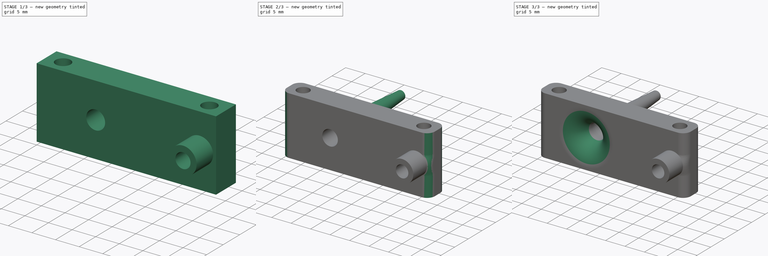
[diagram: build sequence overview — one tinted view per stage of 3, left to right]
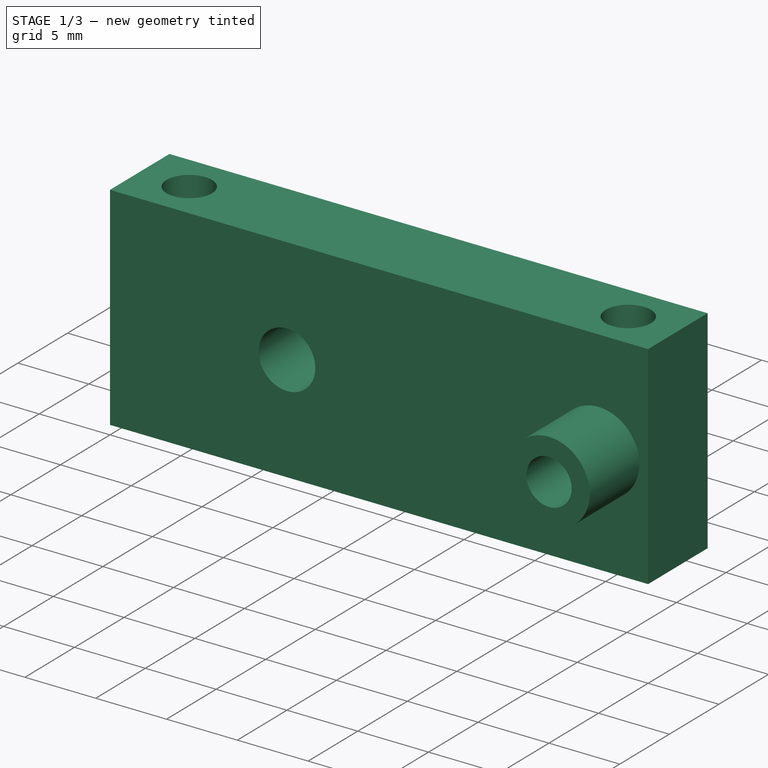
[diagram: stage 1 of 3 — iso view after this stage's code; geometry added in this stage tinted green]
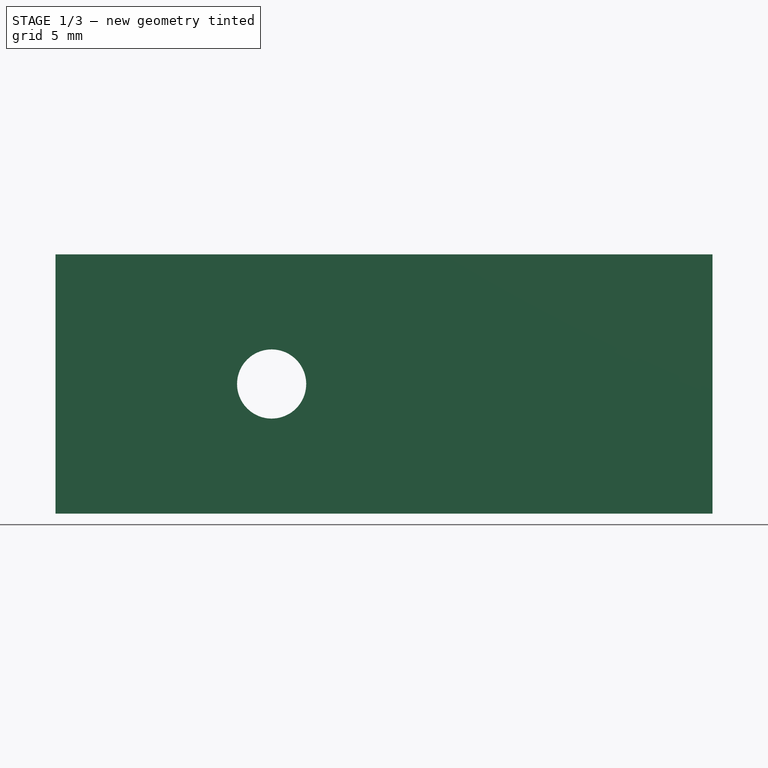
[diagram: stage 1 of 3 — front view after this stage's code; geometry added in this stage tinted green]
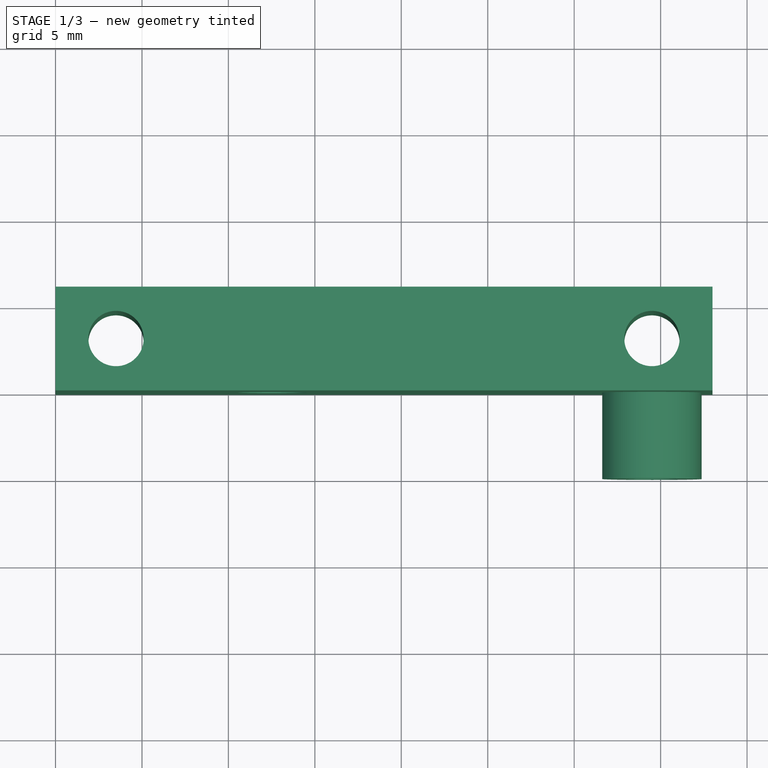
[diagram: stage 1 of 3 — top view after this stage's code; geometry added in this stage tinted green]
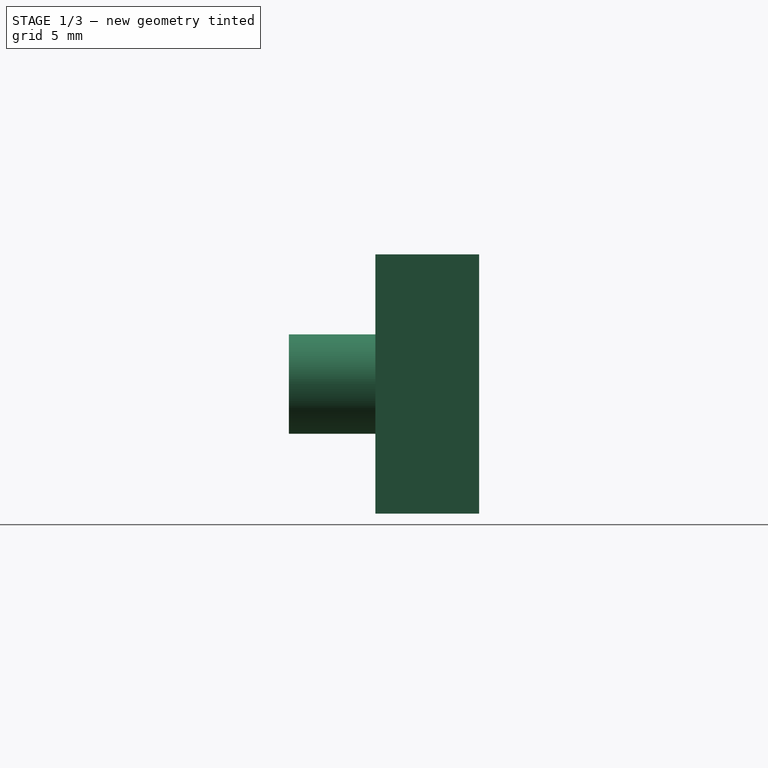
[diagram: stage 1 of 3 — right view after this stage's code; geometry added in this stage tinted green]
FCSTD DOCUMENT  (FreeCAD 1.0R39109 (Git))
Label: funnel
License: All rights reserved
LicenseURL: https://en.wikipedia.org/wiki/All_rights_reserved
objects: Sketcher::SketchObject×8, PartDesign::Fillet×4, PartDesign::Pad×2, PartDesign::Plane×2, PartDesign::Pocket×1, PartDesign::AdditiveLoft×1, PartDesign::Body×1
note: 43 computed .brp shape members not serialized (recipe doc carries the construction recipe); baked Part::Feature solids carry a one-line shape summary decoded from their .brp

FEATURE [Sketcher::SketchObject] Sketch
  ArcFitTolerance = 1e-06
  AttachmentSupport = -> [XY_Plane]
  FullyConstrained = true
  MakeInternals = false
  MapMode = 5
  sketch-geometry (14):
    g0: LineSegment StartX=0 StartY=0 StartZ=0 EndX=38 EndY=0 EndZ=0
    g1: LineSegment StartX=38 StartY=0 StartZ=0 EndX=38 EndY=6 EndZ=0
    g2: LineSegment StartX=38 StartY=6 StartZ=0 EndX=0 EndY=6 EndZ=0
    g3: LineSegment StartX=0 StartY=6 StartZ=0 EndX=0 EndY=0 EndZ=0
    g4: LineSegment [constr] StartX=0 StartY=6 StartZ=0 EndX=0 EndY=3 EndZ=0
    g5: LineSegment [constr] StartX=0 StartY=3 StartZ=0 EndX=3.5 EndY=3 EndZ=0
    g6: LineSegment [constr] StartX=3.5 StartY=3 StartZ=0 EndX=3.5 EndY=6 EndZ=0
    g7: LineSegment [constr] StartX=3.5 StartY=6 StartZ=0 EndX=0 EndY=6 EndZ=0
    g8: LineSegment [constr] StartX=38 StartY=6 StartZ=0 EndX=34.5 EndY=6 EndZ=0
    g9: LineSegment [constr] StartX=34.5 StartY=6 StartZ=0 EndX=34.5 EndY=3 EndZ=0
    g10: LineSegment [constr] StartX=34.5 StartY=3 StartZ=0 EndX=38 EndY=3 EndZ=0
    g11: LineSegment [constr] StartX=38 StartY=3 StartZ=0 EndX=38 EndY=6 EndZ=0
    g12: Circle CenterX=3.5 CenterY=3 CenterZ=0 NormalX=0 NormalY=0 NormalZ=1 AngleXU=0 Radius=1.6
    g13: Circle CenterX=34.5 CenterY=3 CenterZ=0 NormalX=0 NormalY=0 NormalZ=1 AngleXU=0 Radius=1.6
  constraints (37):
    c: Coincident(g0,g1)
    c: Coincident(g1,g2)
    c: Coincident(g2,g3)
    c: Coincident(g3,g0)
    c: Horizontal(g0)
    c: Horizontal(g2)
    c: Vertical(g1)
    c: Vertical(g3)
    c: Distance(g1,g3) = 38
    c: Distance(g0,g2) = 6
    c: Coincident(g0,g-1)
    c: Coincident(g4,g5)
    c: Coincident(g5,g6)
    c: Coincident(g6,g7)
    c: Coincident(g7,g4)
    c: Vertical(g4)
    c: Vertical(g6)
    c: Horizontal(g5)
    c: Horizontal(g7)
    c: Distance(g4,g6) = 3.5
    c: Distance(g5,g7) = 3
    c: Coincident(g4,g2)
    c: Coincident(g8,g9)
    c: Coincident(g9,g10)
    c: Coincident(g10,g11)
    c: Coincident(g11,g8)
    c: Horizontal(g8)
    c: Horizontal(g10)
    c: Vertical(g9)
    c: Vertical(g11)
    c: Distance(g9,g11) = 3.5
    c: Distance(g8,g10) = 3
    c: Coincident(g8,g1)
    c: Diameter(g12) = 3.2
    c: Coincident(g12,g5)
    c: Diameter(g13) = 3.2
    c: Coincident(g13,g9)
FEATURE [PartDesign::Pad] Pad
  Direction = (0,0,1)
  Length = 15
  Length2 = 10
  Profile = -> Sketch
  ReferenceAxis = -> Sketch [N_Axis]
  Refine = true
  Suppressed = false
  Type = 0
FEATURE [Sketcher::SketchObject] Sketch001
  ArcFitTolerance = 1e-06
  AttachmentSupport = -> [Pad]
  FullyConstrained = true
  MakeInternals = false
  MapMode = 5
  Placement = pos=(0,0,0) rot=(1,0,0;1.5708rad)
  sketch-geometry (9):
    g0: LineSegment [constr] StartX=0 StartY=0 StartZ=0 EndX=38 EndY=0 EndZ=0
    g1: LineSegment [constr] StartX=38 StartY=0 StartZ=0 EndX=38 EndY=15 EndZ=0
    g2: LineSegment [constr] StartX=38 StartY=15 StartZ=0 EndX=0 EndY=15 EndZ=0
    g3: LineSegment [constr] StartX=0 StartY=15 StartZ=0 EndX=0 EndY=0 EndZ=0
    g4: LineSegment [constr] StartX=0 StartY=0 StartZ=0 EndX=12.5 EndY=0 EndZ=0
    g5: LineSegment [constr] StartX=12.5 StartY=0 StartZ=0 EndX=12.5 EndY=7.5 EndZ=0
    g6: LineSegment [constr] StartX=12.5 StartY=7.5 StartZ=0 EndX=0 EndY=7.5 EndZ=0
    g7: LineSegment [constr] StartX=0 StartY=7.5 StartZ=0 EndX=0 EndY=0 EndZ=0
    g8: Circle CenterX=12.5 CenterY=7.5 CenterZ=0 NormalX=0 NormalY=0 NormalZ=1 AngleXU=0 Radius=2
  constraints (24):
    c: Coincident(g0,g1)
    c: Coincident(g1,g2)
    c: Coincident(g2,g3)
    c: Coincident(g3,g0)
    c: Horizontal(g0)
    c: Horizontal(g2)
    c: Vertical(g1)
    c: Vertical(g3)
    c: Distance(g1,g3) = 38
    c: Distance(g0,g2) = 15
    c: Coincident(g0,g-1)
    c: Coincident(g4,g5)
    c: Coincident(g5,g6)
    c: Coincident(g6,g7)
    c: Coincident(g7,g4)
    c: Horizontal(g4)
    c: Horizontal(g6)
    c: Vertical(g5)
    c: Vertical(g7)
    c: Distance(g5,g7) = 12.5
    c: Distance(g4,g6) = 7.5
    c: Coincident(g4,g0)
    c: Diameter(g8) = 4
    c: Coincident(g8,g5)
FEATURE [PartDesign::Pocket] Pocket
  BaseFeature = -> Pad
  Direction = (0,1,-2e-16)
  Length = 7
  Length2 = 5
  Profile = -> Sketch001
  ReferenceAxis = -> Sketch001 [N_Axis]
  Refine = true
  Suppressed = false
  Type = 0
FEATURE [Sketcher::SketchObject] Sketch002
  ArcFitTolerance = 1e-06
  AttachmentSupport = -> [Pocket]
  FullyConstrained = true
  MakeInternals = false
  MapMode = 5
  Placement = pos=(0,0,0) rot=(1,0,0;1.5708rad)
  sketch-geometry (10):
    g0: LineSegment [constr] StartX=0 StartY=0 StartZ=0 EndX=38 EndY=0 EndZ=0
    g1: LineSegment [constr] StartX=38 StartY=0 StartZ=0 EndX=38 EndY=15 EndZ=0
    g2: LineSegment [constr] StartX=38 StartY=15 StartZ=0 EndX=0 EndY=15 EndZ=0
    g3: LineSegment [constr] StartX=0 StartY=15 StartZ=0 EndX=0 EndY=0 EndZ=0
    g4: LineSegment [constr] StartX=0 StartY=0 StartZ=0 EndX=34.5 EndY=0 EndZ=0
    g5: LineSegment [constr] StartX=34.5 StartY=0 StartZ=0 EndX=34.5 EndY=7.5 EndZ=0
    g6: LineSegment [constr] StartX=34.5 StartY=7.5 StartZ=0 EndX=0 EndY=7.5 EndZ=0
    g7: LineSegment [constr] StartX=0 StartY=7.5 StartZ=0 EndX=0 EndY=0 EndZ=0
    g8: Circle CenterX=34.5 CenterY=7.5 CenterZ=0 NormalX=0 NormalY=0 NormalZ=1 AngleXU=0 Radius=2.875
    g9: Circle CenterX=34.5 CenterY=7.5 CenterZ=0 NormalX=0 NormalY=0 NormalZ=1 AngleXU=0 Radius=1.6
  constraints (26):
    c: Coincident(g0,g1)
    c: Coincident(g1,g2)
    c: Coincident(g2,g3)
    c: Coincident(g3,g0)
    c: Horizontal(g0)
    c: Horizontal(g2)
    c: Vertical(g1)
    c: Vertical(g3)
    c: Distance(g1,g3) = 38
    c: Distance(g0,g2) = 15
    c: Coincident(g0,g-1)
    c: Coincident(g4,g5)
    c: Coincident(g5,g6)
    c: Coincident(g6,g7)
    c: Coincident(g7,g4)
    c: Horizontal(g4)
    c: Horizontal(g6)
    c: Vertical(g5)
    c: Vertical(g7)
    c: Distance(g5,g7) = 34.5
    c: Distance(g4,g6) = 7.5
    c: Coincident(g4,g0)
    c: Diameter(g8) = 5.75
    c: Coincident(g8,g5)
    c: Diameter(g9) = 3.2
    c: Coincident(g9,g5)
FEATURE [PartDesign::Pad] Pad001
  BaseFeature = -> Pocket
  Direction = (0,-1,2e-16)
  Length = 5
  Length2 = 10
  Profile = -> Sketch002
  ReferenceAxis = -> Sketch002 [N_Axis]
  Refine = true
  Suppressed = false
  Type = 0
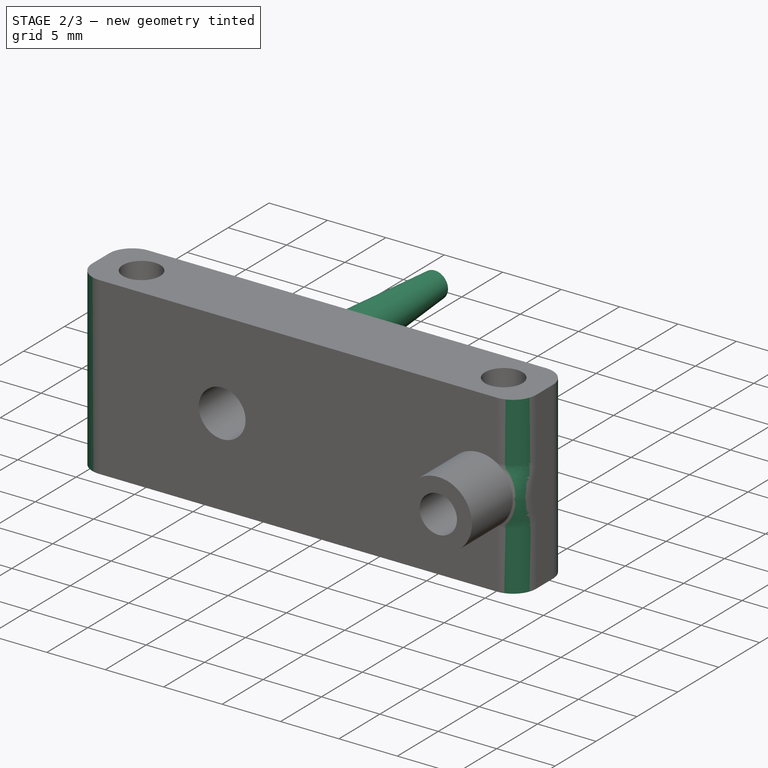
[diagram: stage 2 of 3 — iso view after this stage's code; geometry added in this stage tinted green]
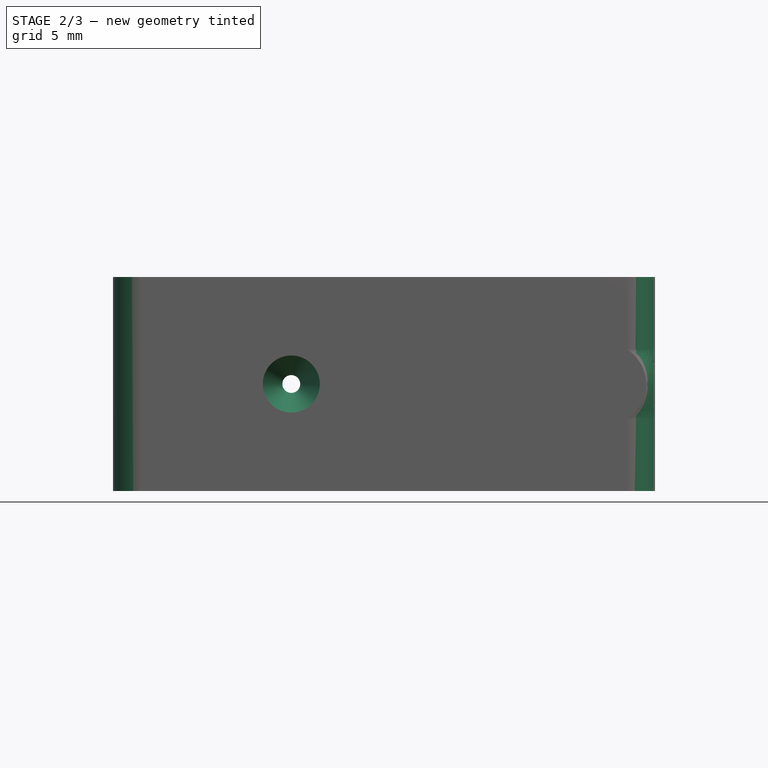
[diagram: stage 2 of 3 — front view after this stage's code; geometry added in this stage tinted green]
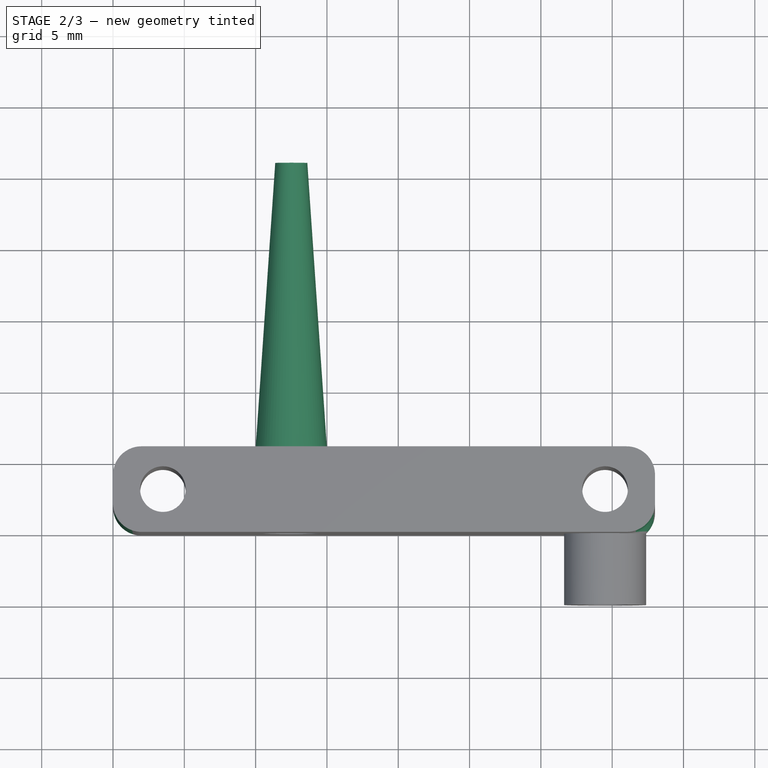
[diagram: stage 2 of 3 — top view after this stage's code; geometry added in this stage tinted green]
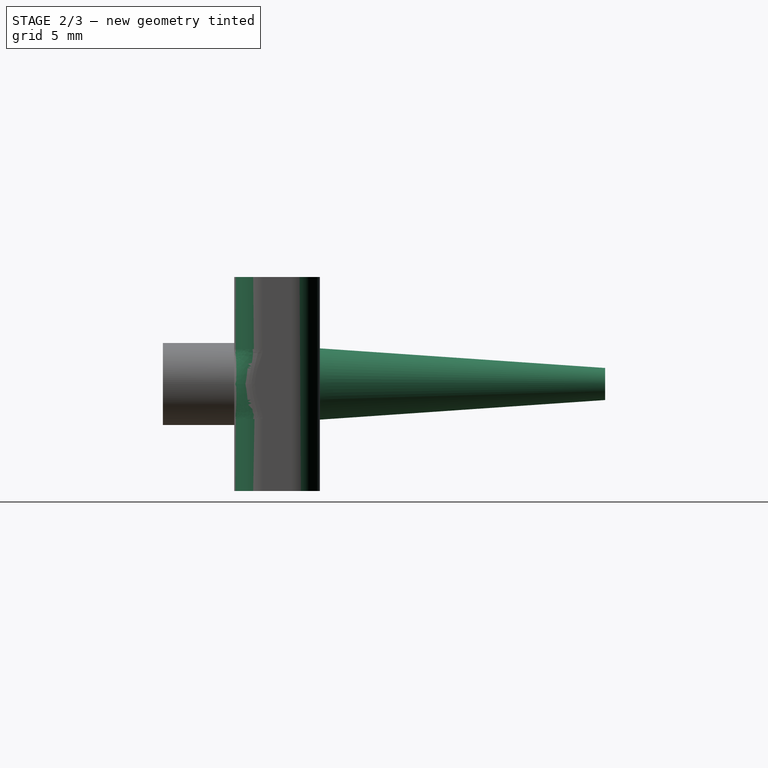
[diagram: stage 2 of 3 — right view after this stage's code; geometry added in this stage tinted green]
FEATURE [PartDesign::Fillet] Fillet
  Base = -> Pad001 [Edge1,Edge4,Edge18,Edge7]
  BaseFeature = -> Pad001
  Radius = 2
  Refine = true
  SupportTransform = false
  Suppressed = false
  UseAllEdges = false
FEATURE [Sketcher::SketchObject] Sketch003
  ArcFitTolerance = 1e-06
  AttachmentSupport = -> [Fillet]
  FullyConstrained = true
  MakeInternals = false
  MapMode = 5
  Placement = pos=(0,0,0) rot=(1,0,0;1.5708rad)
FEATURE [PartDesign::Plane] DatumPlane
  AttachmentOffset = pos=(0,0,25) rot=(0,0,1;0rad)
  AttachmentSupport = -> [Fillet]
  Length = 60
  MapMode = 5
  Placement = pos=(0,-25,5.6e-15) rot=(1,0,0;1.5708rad)
  ResizeMode = 0
  Width = 60
FEATURE [Sketcher::SketchObject] Sketch004
  ArcFitTolerance = 1e-06
  AttachmentSupport = -> [DatumPlane]
  FullyConstrained = true
  MakeInternals = false
  MapMode = 5
  Placement = pos=(0,-25,5.6e-15) rot=(1,0,0;1.5708rad)
  sketch-geometry (10):
    g0: LineSegment [constr] StartX=0 StartY=0 StartZ=0 EndX=38 EndY=0 EndZ=0
    g1: LineSegment [constr] StartX=38 StartY=0 StartZ=0 EndX=38 EndY=15 EndZ=0
    g2: LineSegment [constr] StartX=38 StartY=15 StartZ=0 EndX=0 EndY=15 EndZ=0
    g3: LineSegment [constr] StartX=0 StartY=15 StartZ=0 EndX=0 EndY=0 EndZ=0
    g4: LineSegment [constr] StartX=0 StartY=0 StartZ=0 EndX=12.52 EndY=0 EndZ=0
    g5: LineSegment [constr] StartX=12.52 StartY=0 StartZ=0 EndX=12.52 EndY=7.5 EndZ=0
    g6: LineSegment [constr] StartX=12.52 StartY=7.5 StartZ=0 EndX=0 EndY=7.5 EndZ=0
    g7: LineSegment [constr] StartX=0 StartY=7.5 StartZ=0 EndX=0 EndY=0 EndZ=0
    g8: Circle CenterX=12.52 CenterY=7.5 CenterZ=0 NormalX=0 NormalY=0 NormalZ=1 AngleXU=0 Radius=0.375
    g9: Circle CenterX=12.52 CenterY=7.5 CenterZ=0 NormalX=0 NormalY=0 NormalZ=1 AngleXU=0 Radius=0.875
  constraints (26):
    c: Coincident(g0,g1)
    c: Coincident(g1,g2)
    c: Coincident(g2,g3)
    c: Coincident(g3,g0)
    c: Horizontal(g0)
    c: Horizontal(g2)
    c: Vertical(g1)
    c: Vertical(g3)
    c: Distance(g1,g3) = 38
    c: Distance(g0,g2) = 15
    c: Coincident(g0,g-1)
    c: Coincident(g4,g5)
    c: Coincident(g5,g6)
    c: Coincident(g6,g7)
    c: Coincident(g7,g4)
    c: Horizontal(g4)
    c: Horizontal(g6)
    c: Vertical(g5)
    c: Vertical(g7)
    c: Distance(g5,g7) = 12.52
    c: Distance(g4,g6) = 7.5
    c: Coincident(g4,g0)
    c: Diameter(g8) = 0.75
    c: Coincident(g8,g5)
    c: Diameter(g9) = 1.75
    c: Coincident(g9,g5)
FEATURE [Sketcher::SketchObject] Sketch005
  ArcFitTolerance = 1e-06
  AttachmentSupport = -> [Fillet]
  FullyConstrained = true
  MakeInternals = false
  MapMode = 5
  Placement = pos=(0,0,0) rot=(1,0,0;1.5708rad)
  sketch-geometry (10):
    g0: LineSegment [constr] StartX=0 StartY=0 StartZ=0 EndX=38 EndY=0 EndZ=0
    g1: LineSegment [constr] StartX=38 StartY=0 StartZ=0 EndX=38 EndY=15 EndZ=0
    g2: LineSegment [constr] StartX=38 StartY=15 StartZ=0 EndX=0 EndY=15 EndZ=0
    g3: LineSegment [constr] StartX=0 StartY=15 StartZ=0 EndX=0 EndY=0 EndZ=0
    g4: LineSegment [constr] StartX=0 StartY=0 StartZ=0 EndX=12.5 EndY=0 EndZ=0
    g5: LineSegment [constr] StartX=12.5 StartY=0 StartZ=0 EndX=12.5 EndY=7.5 EndZ=0
    g6: LineSegment [constr] StartX=12.5 StartY=7.5 StartZ=0 EndX=0 EndY=7.5 EndZ=0
    g7: LineSegment [constr] StartX=0 StartY=7.5 StartZ=0 EndX=0 EndY=0 EndZ=0
    g8: Circle CenterX=12.5 CenterY=7.5 CenterZ=0 NormalX=0 NormalY=0 NormalZ=1 AngleXU=0 Radius=2
    g9: Circle CenterX=12.5 CenterY=7.5 CenterZ=0 NormalX=0 NormalY=0 NormalZ=1 AngleXU=0 Radius=2.25
  constraints (26):
    c: Coincident(g0,g1)
    c: Coincident(g1,g2)
    c: Coincident(g2,g3)
    c: Coincident(g3,g0)
    c: Horizontal(g0)
    c: Horizontal(g2)
    c: Vertical(g1)
    c: Vertical(g3)
    c: Distance(g1,g3) = 38
    c: Distance(g0,g2) = 15
    c: Coincident(g0,g-1)
    c: Coincident(g4,g5)
    c: Coincident(g5,g6)
    c: Coincident(g6,g7)
    c: Coincident(g7,g4)
    c: Horizontal(g4)
    c: Horizontal(g6)
    c: Vertical(g5)
    c: Vertical(g7)
    c: Distance(g5,g7) = 12.5
    c: Distance(g4,g6) = 7.5
    c: Coincident(g4,g0)
    c: Diameter(g8) = 4
    c: Coincident(g8,g5)
    c: Diameter(g9) = 4.5
    c: Coincident(g9,g5)
FEATURE [PartDesign::Plane] DatumPlane001
  AttachmentOffset = pos=(0,0,20) rot=(0,0,1;0rad)
  Length = 60
  MapMode = 5
  Placement = pos=(0,26,-4.4e-15) rot=(0,0.707107,0.707107;3.14159rad)
  ResizeMode = 0
  Width = 60
FEATURE [Sketcher::SketchObject] Sketch006
  ArcFitTolerance = 1e-06
  AttachmentSupport = -> [DatumPlane001]
  FullyConstrained = true
  MakeInternals = false
  MapMode = 5
  Placement = pos=(0,26,-4.4e-15) rot=(0,0.707107,0.707107;3.14159rad)
  sketch-geometry (10):
    g0: LineSegment [constr] StartX=0 StartY=0 StartZ=0 EndX=0 EndY=15 EndZ=0
    g1: LineSegment [constr] StartX=0 StartY=15 StartZ=0 EndX=-38 EndY=15 EndZ=0
    g2: LineSegment [constr] StartX=-38 StartY=15 StartZ=0 EndX=-38 EndY=0 EndZ=0
    g3: LineSegment [constr] StartX=-38 StartY=0 StartZ=0 EndX=0 EndY=0 EndZ=0
    g4: LineSegment [constr] StartX=0 StartY=0 StartZ=0 EndX=0 EndY=7.5 EndZ=0
    g5: LineSegment [constr] StartX=0 StartY=7.5 StartZ=0 EndX=-12.5 EndY=7.5 EndZ=0
    g6: LineSegment [constr] StartX=-12.5 StartY=7.5 StartZ=0 EndX=-12.5 EndY=0 EndZ=0
    g7: LineSegment [constr] StartX=-12.5 StartY=0 StartZ=0 EndX=0 EndY=0 EndZ=0
    g8: Circle CenterX=-12.5 CenterY=7.5 CenterZ=0 NormalX=0 NormalY=0 NormalZ=1 AngleXU=0 Radius=0.625
    g9: Circle CenterX=-12.5 CenterY=7.5 CenterZ=0 NormalX=0 NormalY=0 NormalZ=1 AngleXU=0 Radius=1.125
  constraints (26):
    c: Coincident(g0,g1)
    c: Coincident(g1,g2)
    c: Coincident(g2,g3)
    c: Coincident(g3,g0)
    c: Vertical(g0)
    c: Vertical(g2)
    c: Horizontal(g1)
    c: Horizontal(g3)
    c: Distance(g0,g2) = 38
    c: Distance(g1,g3) = 15
    c: Coincident(g0,g-1)
    c: Coincident(g4,g5)
    c: Coincident(g5,g6)
    c: Coincident(g6,g7)
    c: Coincident(g7,g4)
    c: Vertical(g4)
    c: Vertical(g6)
    c: Horizontal(g5)
    c: Horizontal(g7)
    c: Distance(g4,g6) = 12.5
    c: Distance(g5,g7) = 7.5
    c: Coincident(g4,g0)
    c: Diameter(g8) = 1.25
    c: Coincident(g8,g5)
    c: Diameter(g9) = 2.25
    c: Coincident(g9,g5)
FEATURE [Sketcher::SketchObject] Sketch007
  ArcFitTolerance = 1e-06
  AttachmentSupport = -> [Fillet]
  FullyConstrained = true
  MakeInternals = false
  MapMode = 5
  Placement = pos=(0,6,0) rot=(0,0.707107,0.707107;3.14159rad)
  sketch-geometry (10):
    g0: LineSegment [constr] StartX=0 StartY=0 StartZ=0 EndX=0 EndY=15 EndZ=0
    g1: LineSegment [constr] StartX=0 StartY=15 StartZ=0 EndX=-38 EndY=15 EndZ=0
    g2: LineSegment [constr] StartX=-38 StartY=15 StartZ=0 EndX=-38 EndY=0 EndZ=0
    g3: LineSegment [constr] StartX=-38 StartY=0 StartZ=0 EndX=0 EndY=0 EndZ=0
    g4: LineSegment [constr] StartX=0 StartY=0 StartZ=0 EndX=0 EndY=7.5 EndZ=0
    g5: LineSegment [constr] StartX=0 StartY=7.5 StartZ=0 EndX=-12.5 EndY=7.5 EndZ=0
    g6: LineSegment [constr] StartX=-12.5 StartY=7.5 StartZ=0 EndX=-12.5 EndY=0 EndZ=0
    g7: LineSegment [constr] StartX=-12.5 StartY=0 StartZ=0 EndX=0 EndY=0 EndZ=0
    g8: Circle CenterX=-12.5 CenterY=7.5 CenterZ=0 NormalX=0 NormalY=0 NormalZ=1 AngleXU=0 Radius=2
    g9: Circle CenterX=-12.5 CenterY=7.5 CenterZ=0 NormalX=0 NormalY=0 NormalZ=1 AngleXU=0 Radius=2.5
  constraints (26):
    c: Coincident(g0,g1)
    c: Coincident(g1,g2)
    c: Coincident(g2,g3)
    c: Coincident(g3,g0)
    c: Vertical(g0)
    c: Vertical(g2)
    c: Horizontal(g1)
    c: Horizontal(g3)
    c: Distance(g0,g2) = 38
    c: Distance(g1,g3) = 15
    c: Coincident(g0,g-1)
    c: Coincident(g4,g5)
    c: Coincident(g5,g6)
    c: Coincident(g6,g7)
    c: Coincident(g7,g4)
    c: Vertical(g4)
    c: Vertical(g6)
    c: Horizontal(g5)
    c: Horizontal(g7)
    c: Distance(g4,g6) = 12.5
    c: Distance(g5,g7) = 7.5
    c: Coincident(g4,g0)
    c: Diameter(g8) = 4
    c: Coincident(g8,g5)
    c: Diameter(g9) = 5
    c: Coincident(g9,g5)
FEATURE [PartDesign::AdditiveLoft] AdditiveLoft
  BaseFeature = -> Fillet
  Closed = false
  Profile = -> Sketch007
  Refine = true
  Ruled = false
  Sections = -> [Sketch006]
  Suppressed = false
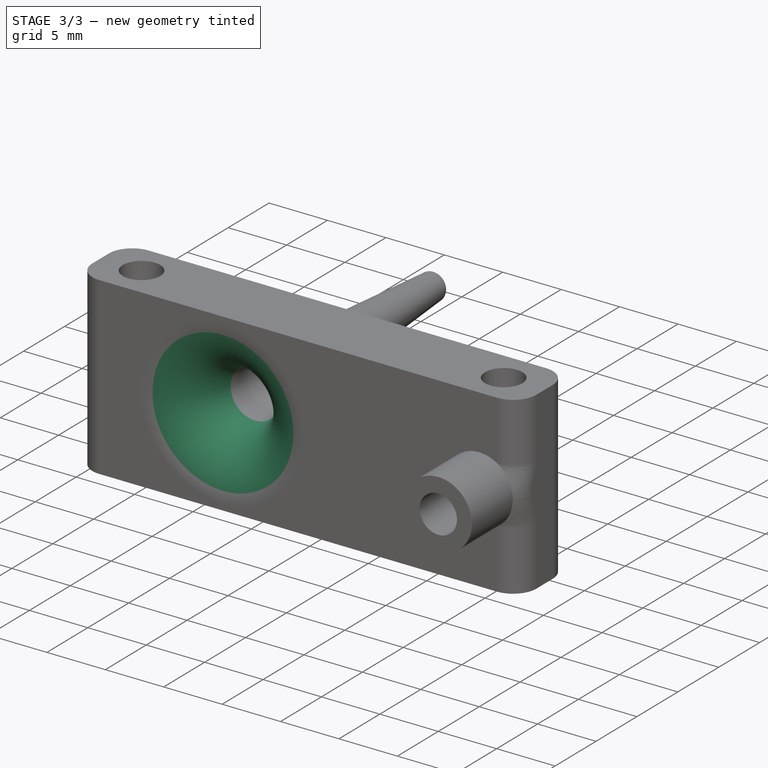
[diagram: stage 3 of 3 — iso view after this stage's code; geometry added in this stage tinted green]
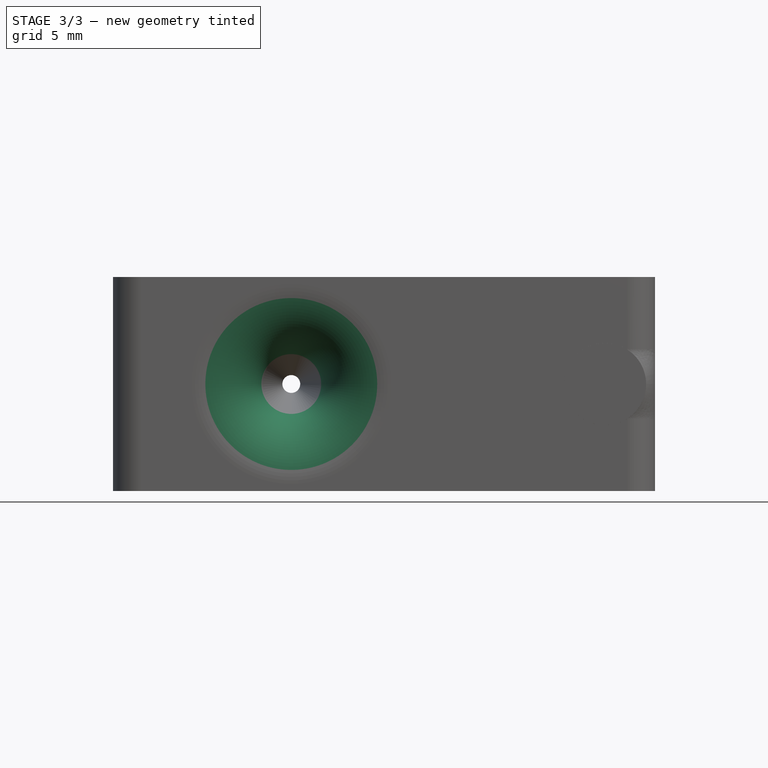
[diagram: stage 3 of 3 — front view after this stage's code; geometry added in this stage tinted green]
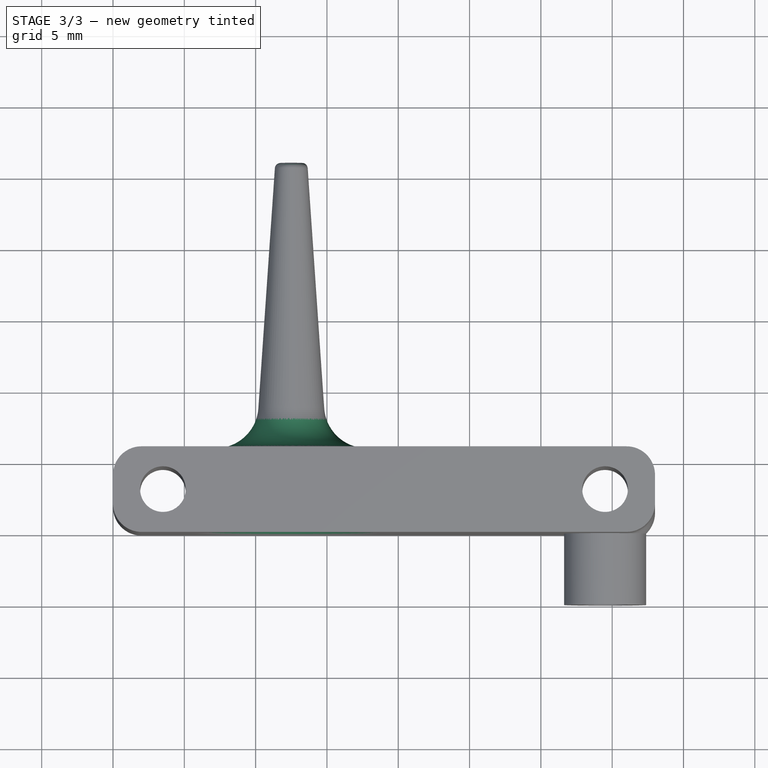
[diagram: stage 3 of 3 — top view after this stage's code; geometry added in this stage tinted green]
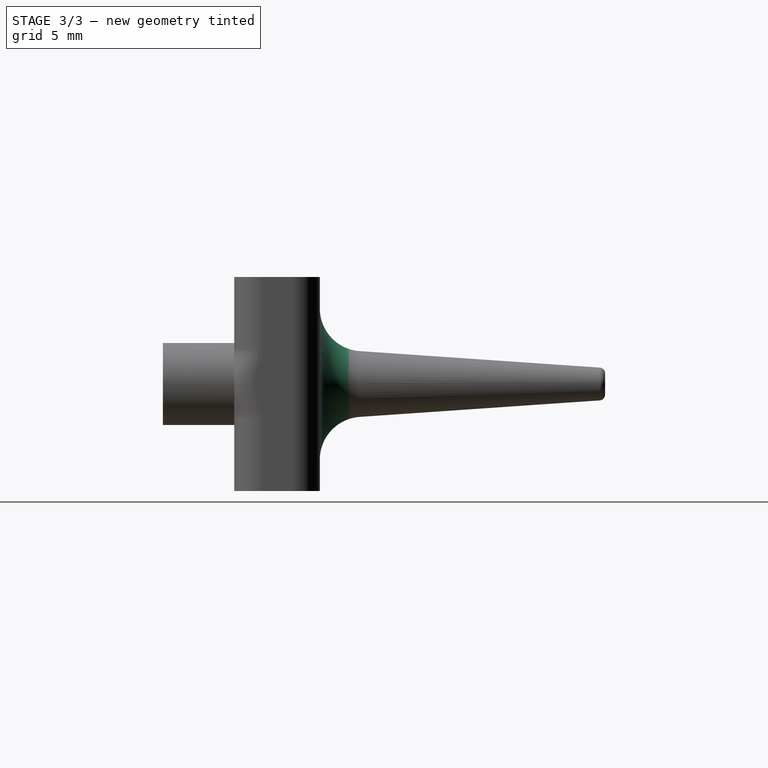
[diagram: stage 3 of 3 — right view after this stage's code; geometry added in this stage tinted green]
FEATURE [PartDesign::Fillet] Fillet001
  Base = -> AdditiveLoft [Edge52]
  BaseFeature = -> AdditiveLoft
  Radius = 0.4
  Refine = true
  SupportTransform = false
  Suppressed = false
  UseAllEdges = false
FEATURE [PartDesign::Fillet] Fillet002
  Base = -> Fillet001 [Edge3]
  BaseFeature = -> Fillet001
  Radius = 3
  Refine = true
  SupportTransform = false
  Suppressed = false
  UseAllEdges = false
FEATURE [PartDesign::Fillet] Fillet003
  Base = -> Fillet002 [Edge40]
  BaseFeature = -> Fillet002
  Radius = 5
  Refine = true
  SupportTransform = false
  Suppressed = false
  UseAllEdges = false
FEATURE [PartDesign::Body] Body
  AllowCompound = false
  Group = -> [Sketch,Pad,Sketch001,Pocket,Sketch002,Pad001,Fillet,Sketch003,DatumPlane,Sketch004,Sketch005,DatumPlane001,Sketch006,Sketch007,AdditiveLoft,Fillet001,Fillet002,Fillet003]
  Origin = -> Origin
  Tip = -> Fillet003
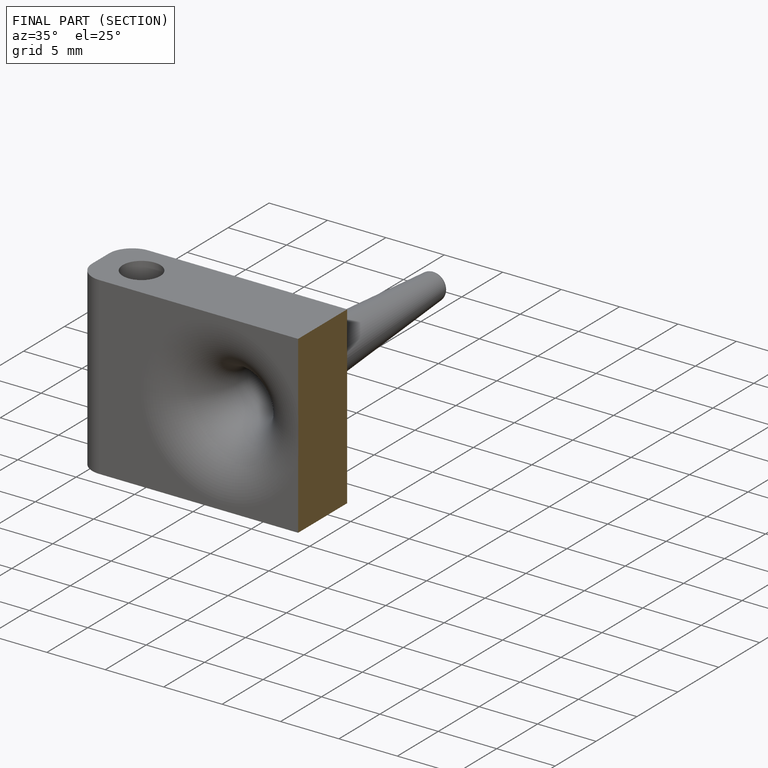
[diagram: finished part — half-section view (interior)]
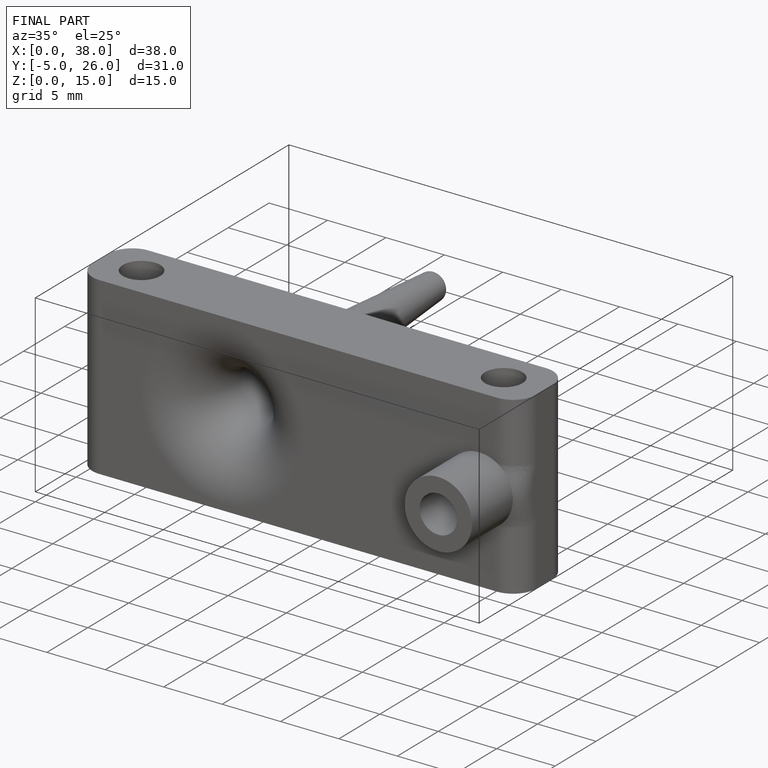
[diagram: finished part — iso view with bounding-box wireframe]
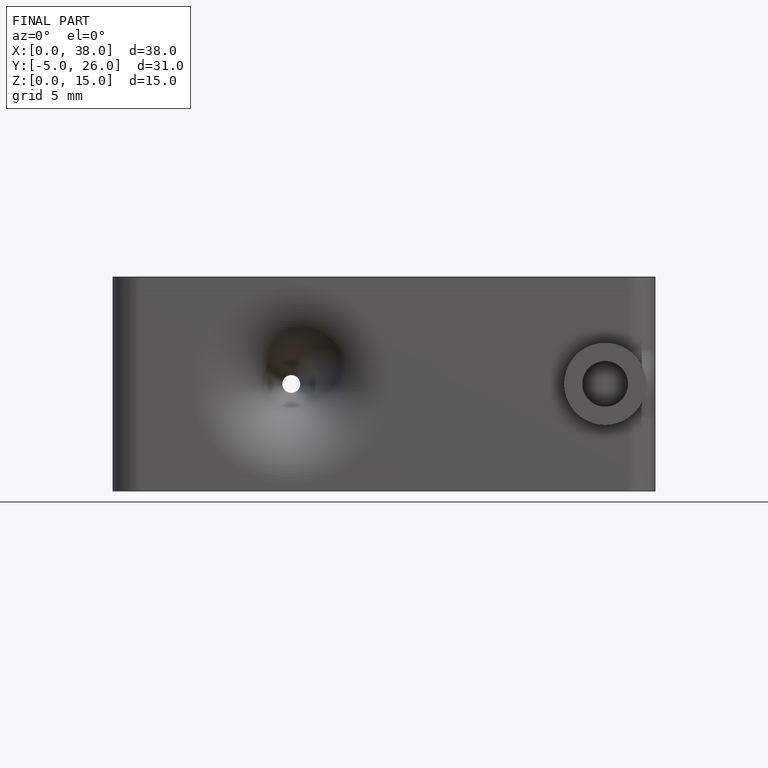
[diagram: finished part — front view with bounding-box wireframe]
